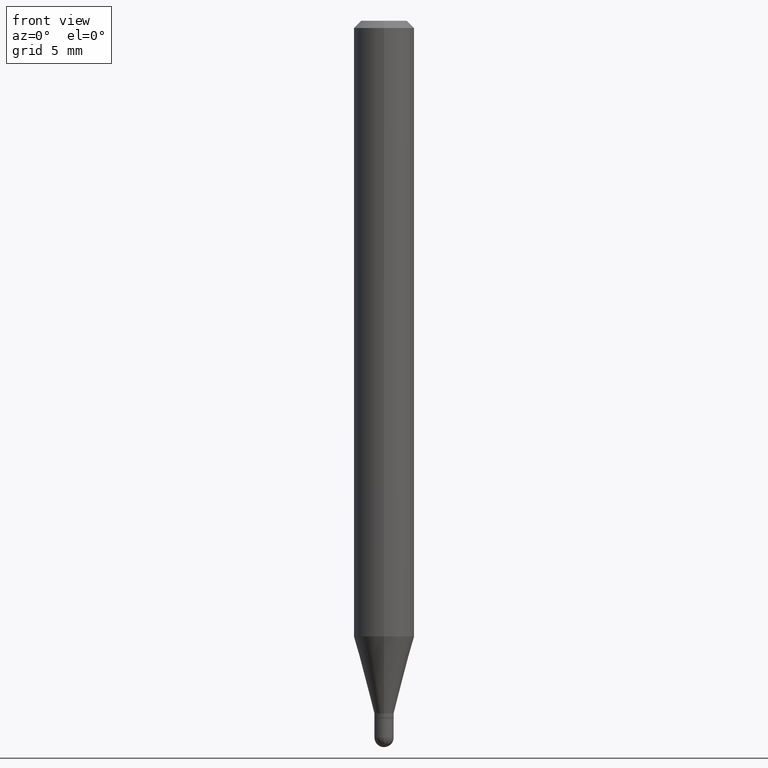
[diagram: clean part render]
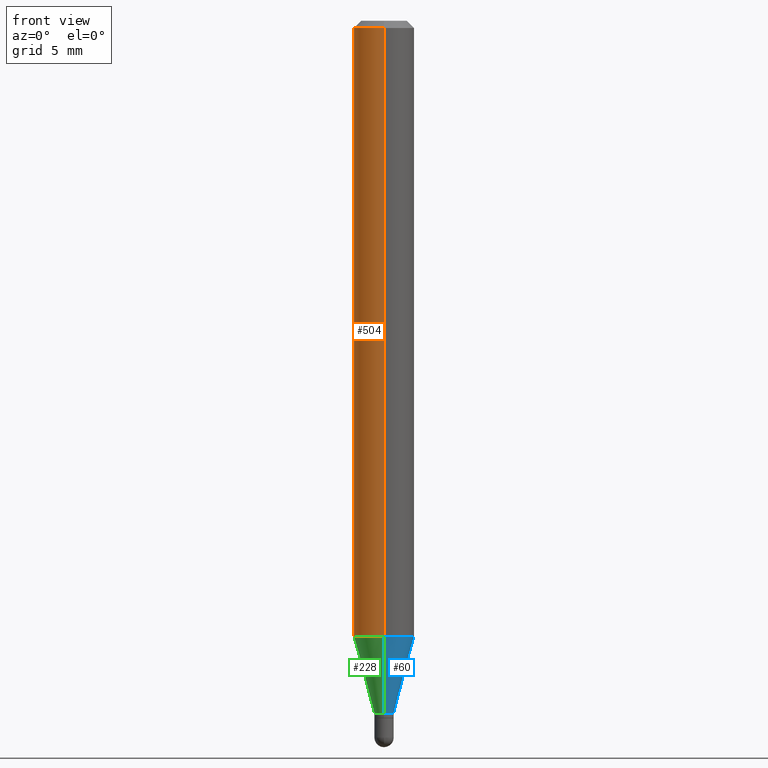
[diagram: same view with three faces highlighted in distinct colors, each labeled with its STEP entity id]
A machine part, front view with three faces highlighted in distinct colors.
Their STEP definitions:

[orange] entity #504 — the highlighted cylindrical surface (edge-blend (fillet) strip) has radius 1.5875 mm, axis along (-0, 0, 1).
#15 = ORIENTED_EDGE ( 'NONE', *, *, #494, .T. ) ;
#38 = CARTESIAN_POINT ( 'NONE',  ( 4.440892098500938748E-16, 0.06249999999999995143, -0.01500000000000022669 ) ) ;
#43 = EDGE_CURVE ( 'NONE', #182, #509, #508, .T. ) ;
#53 = CARTESIAN_POINT ( 'NONE',  ( 4.440892098500625669E-16, 0.06250000000000000000, -2.182189585385353959E-16 ) ) ;
#68 = CYLINDRICAL_SURFACE ( 'NONE', #138, 0.06250000000000000000 ) ;
#91 = DIRECTION ( 'NONE',  ( -2.445453445222058048E-29, 3.491503336616566334E-15, 1.000000000000000000 ) ) ;
#111 = CARTESIAN_POINT ( 'NONE',  ( -4.364351673553605587E-16, -0.06250000000000445477, -1.271387840678323000 ) ) ;
#132 = AXIS2_PLACEMENT_3D ( 'NONE', #156, #400, #441 ) ;
#133 = AXIS2_PLACEMENT_3D ( 'NONE', #341, #171, #305 ) ;
#138 = AXIS2_PLACEMENT_3D ( 'NONE', #220, #426, #301 ) ;
#143 = CARTESIAN_POINT ( 'NONE',  ( -4.364351673553916201E-16, -0.06250000000000000000, 2.182189585385353959E-16 ) ) ;
#144 = VERTEX_POINT ( 'NONE', #38 ) ;
#156 = CARTESIAN_POINT ( 'NONE',  ( 3.668180167833088946E-31, -5.237255004924852262E-17, -0.01500000000000000812 ) ) ;
#171 = DIRECTION ( 'NONE',  ( -2.445453445222057768E-29, 3.491503336616566334E-15, 1.000000000000000000 ) ) ;
#182 = VERTEX_POINT ( 'NONE', #111 ) ;
#193 = EDGE_CURVE ( 'NONE', #144, #509, #295, .T. ) ;
#220 = CARTESIAN_POINT ( 'NONE',  ( 0.000000000000000000, 0.000000000000000000, 0.000000000000000000 ) ) ;
#236 = ORIENTED_EDGE ( 'NONE', *, *, #285, .F. ) ;
#252 = CARTESIAN_POINT ( 'NONE',  ( 4.440892098500934804E-16, 0.06249999999999554523, -1.271387840678323444 ) ) ;
#257 = VECTOR ( 'NONE', #385, 39.37007874015748143 ) ;
#261 = ORIENTED_EDGE ( 'NONE', *, *, #193, .F. ) ;
#285 = EDGE_CURVE ( 'NONE', #289, #144, #443, .T. ) ;
#289 = VERTEX_POINT ( 'NONE', #252 ) ;
#295 = CIRCLE ( 'NONE', #132, 0.06250000000000000000 ) ;
#301 = DIRECTION ( 'NONE',  ( -6.982962677686265922E-15, -1.000000000000000000, 3.491503336616566334E-15 ) ) ;
#305 = DIRECTION ( 'NONE',  ( -6.982962677686265922E-15, -1.000000000000000000, 4.370956789862821150E-15 ) ) ;
#311 = VECTOR ( 'NONE', #91, 39.37007874015748143 ) ;
#315 = EDGE_LOOP ( 'NONE', ( #236, #15, #358, #261 ) ) ;
#341 = CARTESIAN_POINT ( 'NONE',  ( 3.109119775200238315E-29, -4.439054887862097142E-15, -1.271387840678323222 ) ) ;
#358 = ORIENTED_EDGE ( 'NONE', *, *, #43, .T. ) ;
#377 = CARTESIAN_POINT ( 'NONE',  ( -4.364351673553912750E-16, -0.06250000000000005551, -0.01499999999999979128 ) ) ;
#385 = DIRECTION ( 'NONE',  ( -2.445453445222058048E-29, 3.491503336616566334E-15, 1.000000000000000000 ) ) ;
#400 = DIRECTION ( 'NONE',  ( -2.445453445222057768E-29, 3.491503336616566334E-15, 1.000000000000000000 ) ) ;
#418 = CIRCLE ( 'NONE', #133, 0.06250000000000000000 ) ;
#426 = DIRECTION ( 'NONE',  ( -2.445453445222057768E-29, 3.491503336616566334E-15, 1.000000000000000000 ) ) ;
#441 = DIRECTION ( 'NONE',  ( -6.982962677686265922E-15, -1.000000000000000000, 3.483106191921935554E-15 ) ) ;
#443 = LINE ( 'NONE', #53, #311 ) ;
#470 = FACE_OUTER_BOUND ( 'NONE', #315, .T. ) ;
#494 = EDGE_CURVE ( 'NONE', #289, #182, #418, .T. ) ;
#504 = ADVANCED_FACE ( 'NONE', ( #470 ), #68, .T. ) ;
#508 = LINE ( 'NONE', #143, #257 ) ;
#509 = VERTEX_POINT ( 'NONE', #377 ) ;

[blue] entity #60 — the highlighted conical surface has half-angle 15 deg.
#29 = FACE_OUTER_BOUND ( 'NONE', #450, .T. ) ;
#41 = CARTESIAN_POINT ( 'NONE',  ( 2.930988785010741768E-16, 0.01999999999999492462, -1.429999999999999938 ) ) ;
#48 = DIRECTION ( 'NONE',  ( -6.982962677686265133E-15, -1.000000000000000000, 0.000000000000000000 ) ) ;
#50 = VECTOR ( 'NONE', #329, 39.37007874015748143 ) ;
#60 = ADVANCED_FACE ( 'NONE', ( #29 ), #173, .T. ) ;
#71 = AXIS2_PLACEMENT_3D ( 'NONE', #158, #292, #419 ) ;
#76 = ORIENTED_EDGE ( 'NONE', *, *, #259, .T. ) ;
#94 = CARTESIAN_POINT ( 'NONE',  ( -1.396592535536897664E-16, -0.02000000000000491315, -1.429999999999999938 ) ) ;
#111 = CARTESIAN_POINT ( 'NONE',  ( -4.364351673553605587E-16, -0.06250000000000445477, -1.271387840678323000 ) ) ;
#119 = ORIENTED_EDGE ( 'NONE', *, *, #436, .F. ) ;
#124 = DIRECTION ( 'NONE',  ( -2.445453445222057768E-29, 3.491503336616566334E-15, 1.000000000000000000 ) ) ;
#131 = VECTOR ( 'NONE', #324, 39.37007874015748143 ) ;
#158 = CARTESIAN_POINT ( 'NONE',  ( 3.496998426667542866E-29, -4.992849771361689794E-15, -1.429999999999999938 ) ) ;
#168 = AXIS2_PLACEMENT_3D ( 'NONE', #409, #124, #368 ) ;
#173 = CONICAL_SURFACE ( 'NONE', #309, 0.01999999999999992062, 0.2617993877991506846 ) ;
#182 = VERTEX_POINT ( 'NONE', #111 ) ;
#188 = CARTESIAN_POINT ( 'NONE',  ( 1.421085471520544049E-16, 0.01999999999999492462, -1.429999999999999938 ) ) ;
#196 = CIRCLE ( 'NONE', #71, 0.01999999999999992062 ) ;
#199 = VERTEX_POINT ( 'NONE', #41 ) ;
#206 = EDGE_CURVE ( 'NONE', #199, #289, #268, .T. ) ;
#238 = CARTESIAN_POINT ( 'NONE',  ( 3.496998426667542866E-29, -4.992849771361689794E-15, -1.429999999999999938 ) ) ;
#243 = CARTESIAN_POINT ( 'NONE',  ( -1.396592535536897664E-16, -0.02000000000000491315, -1.429999999999999938 ) ) ;
#252 = CARTESIAN_POINT ( 'NONE',  ( 4.440892098500934804E-16, 0.06249999999999554523, -1.271387840678323444 ) ) ;
#259 = EDGE_CURVE ( 'NONE', #278, #199, #196, .T. ) ;
#268 = LINE ( 'NONE', #188, #131 ) ;
#278 = VERTEX_POINT ( 'NONE', #243 ) ;
#286 = CIRCLE ( 'NONE', #168, 0.06250000000000000000 ) ;
#289 = VERTEX_POINT ( 'NONE', #252 ) ;
#292 = DIRECTION ( 'NONE',  ( -2.445453445222057768E-29, 3.491503336616566334E-15, 1.000000000000000000 ) ) ;
#309 = AXIS2_PLACEMENT_3D ( 'NONE', #238, #404, #48 ) ;
#324 = DIRECTION ( 'NONE',  ( 1.839019923739603076E-15, 0.2588190451025253469, 0.9659258262890670910 ) ) ;
#329 = DIRECTION ( 'NONE',  ( -1.807323732225332900E-15, -0.2588190451025185745, 0.9659258262890689783 ) ) ;
#339 = EDGE_CURVE ( 'NONE', #182, #289, #286, .T. ) ;
#343 = ORIENTED_EDGE ( 'NONE', *, *, #206, .T. ) ;
#368 = DIRECTION ( 'NONE',  ( -6.982962677686265922E-15, -1.000000000000000000, 4.370956789862821150E-15 ) ) ;
#370 = ORIENTED_EDGE ( 'NONE', *, *, #339, .F. ) ;
#404 = DIRECTION ( 'NONE',  ( -2.445453445222057768E-29, 3.491503336616566334E-15, 1.000000000000000000 ) ) ;
#409 = CARTESIAN_POINT ( 'NONE',  ( 3.109119775200238315E-29, -4.439054887862097142E-15, -1.271387840678323222 ) ) ;
#419 = DIRECTION ( 'NONE',  ( -6.982962677686265133E-15, -1.000000000000000000, 0.000000000000000000 ) ) ;
#436 = EDGE_CURVE ( 'NONE', #278, #182, #455, .T. ) ;
#450 = EDGE_LOOP ( 'NONE', ( #76, #343, #370, #119 ) ) ;
#455 = LINE ( 'NONE', #94, #50 ) ;

[green] entity #228 — the highlighted conical surface has half-angle 15 deg.
#30 = EDGE_LOOP ( 'NONE', ( #89, #79, #468, #245 ) ) ;
#41 = CARTESIAN_POINT ( 'NONE',  ( 2.930988785010741768E-16, 0.01999999999999492462, -1.429999999999999938 ) ) ;
#50 = VECTOR ( 'NONE', #329, 39.37007874015748143 ) ;
#74 = DIRECTION ( 'NONE',  ( -2.445453445222057768E-29, 3.491503336616566334E-15, 1.000000000000000000 ) ) ;
#79 = ORIENTED_EDGE ( 'NONE', *, *, #447, .T. ) ;
#89 = ORIENTED_EDGE ( 'NONE', *, *, #206, .F. ) ;
#94 = CARTESIAN_POINT ( 'NONE',  ( -1.396592535536897664E-16, -0.02000000000000491315, -1.429999999999999938 ) ) ;
#105 = CONICAL_SURFACE ( 'NONE', #422, 0.01999999999999992062, 0.2617993877991506846 ) ;
#111 = CARTESIAN_POINT ( 'NONE',  ( -4.364351673553605587E-16, -0.06250000000000445477, -1.271387840678323000 ) ) ;
#117 = FACE_OUTER_BOUND ( 'NONE', #30, .T. ) ;
#131 = VECTOR ( 'NONE', #324, 39.37007874015748143 ) ;
#133 = AXIS2_PLACEMENT_3D ( 'NONE', #341, #171, #305 ) ;
#171 = DIRECTION ( 'NONE',  ( -2.445453445222057768E-29, 3.491503336616566334E-15, 1.000000000000000000 ) ) ;
#182 = VERTEX_POINT ( 'NONE', #111 ) ;
#188 = CARTESIAN_POINT ( 'NONE',  ( 1.421085471520544049E-16, 0.01999999999999492462, -1.429999999999999938 ) ) ;
#199 = VERTEX_POINT ( 'NONE', #41 ) ;
#206 = EDGE_CURVE ( 'NONE', #199, #289, #268, .T. ) ;
#228 = ADVANCED_FACE ( 'NONE', ( #117 ), #105, .T. ) ;
#243 = CARTESIAN_POINT ( 'NONE',  ( -1.396592535536897664E-16, -0.02000000000000491315, -1.429999999999999938 ) ) ;
#245 = ORIENTED_EDGE ( 'NONE', *, *, #494, .F. ) ;
#250 = DIRECTION ( 'NONE',  ( -2.445453445222057768E-29, 3.491503336616566334E-15, 1.000000000000000000 ) ) ;
#252 = CARTESIAN_POINT ( 'NONE',  ( 4.440892098500934804E-16, 0.06249999999999554523, -1.271387840678323444 ) ) ;
#268 = LINE ( 'NONE', #188, #131 ) ;
#278 = VERTEX_POINT ( 'NONE', #243 ) ;
#289 = VERTEX_POINT ( 'NONE', #252 ) ;
#303 = CIRCLE ( 'NONE', #388, 0.01999999999999992062 ) ;
#305 = DIRECTION ( 'NONE',  ( -6.982962677686265922E-15, -1.000000000000000000, 4.370956789862821150E-15 ) ) ;
#324 = DIRECTION ( 'NONE',  ( 1.839019923739603076E-15, 0.2588190451025253469, 0.9659258262890670910 ) ) ;
#328 = CARTESIAN_POINT ( 'NONE',  ( 3.496998426667542866E-29, -4.992849771361689794E-15, -1.429999999999999938 ) ) ;
#329 = DIRECTION ( 'NONE',  ( -1.807323732225332900E-15, -0.2588190451025185745, 0.9659258262890689783 ) ) ;
#341 = CARTESIAN_POINT ( 'NONE',  ( 3.109119775200238315E-29, -4.439054887862097142E-15, -1.271387840678323222 ) ) ;
#369 = DIRECTION ( 'NONE',  ( -6.982962677686265133E-15, -1.000000000000000000, 0.000000000000000000 ) ) ;
#388 = AXIS2_PLACEMENT_3D ( 'NONE', #449, #250, #369 ) ;
#412 = DIRECTION ( 'NONE',  ( -6.982962677686265133E-15, -1.000000000000000000, 0.000000000000000000 ) ) ;
#418 = CIRCLE ( 'NONE', #133, 0.06250000000000000000 ) ;
#422 = AXIS2_PLACEMENT_3D ( 'NONE', #328, #74, #412 ) ;
#436 = EDGE_CURVE ( 'NONE', #278, #182, #455, .T. ) ;
#447 = EDGE_CURVE ( 'NONE', #199, #278, #303, .T. ) ;
#449 = CARTESIAN_POINT ( 'NONE',  ( 3.496998426667542866E-29, -4.992849771361689794E-15, -1.429999999999999938 ) ) ;
#455 = LINE ( 'NONE', #94, #50 ) ;
#468 = ORIENTED_EDGE ( 'NONE', *, *, #436, .T. ) ;
#494 = EDGE_CURVE ( 'NONE', #289, #182, #418, .T. ) ;